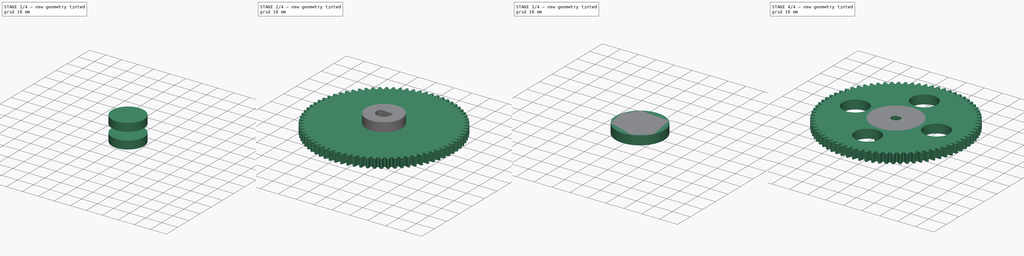
[diagram: build sequence overview — one tinted view per stage of 4, left to right]
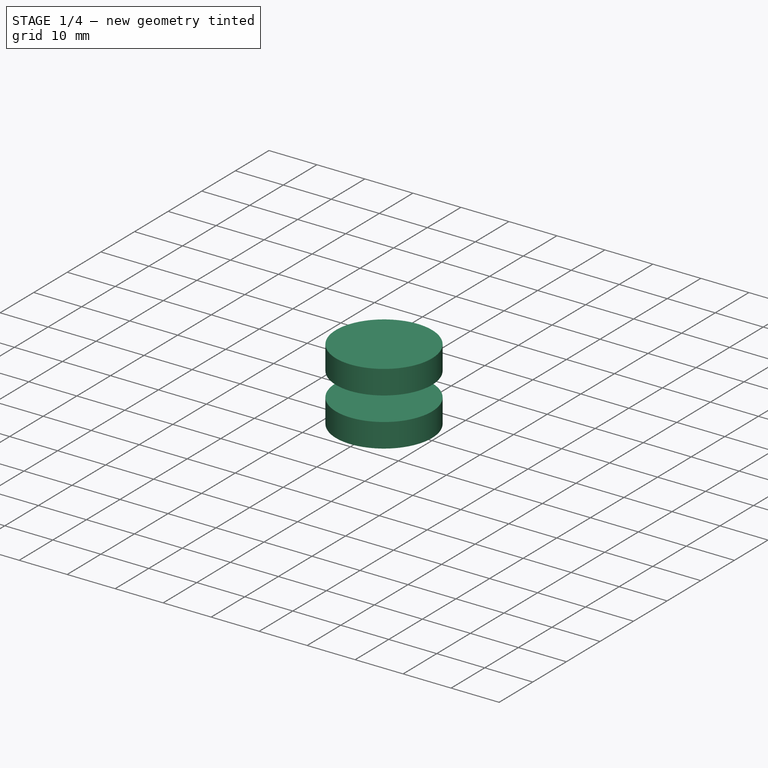
[diagram: stage 1 of 4 — iso view after this stage's code; geometry added in this stage tinted green]
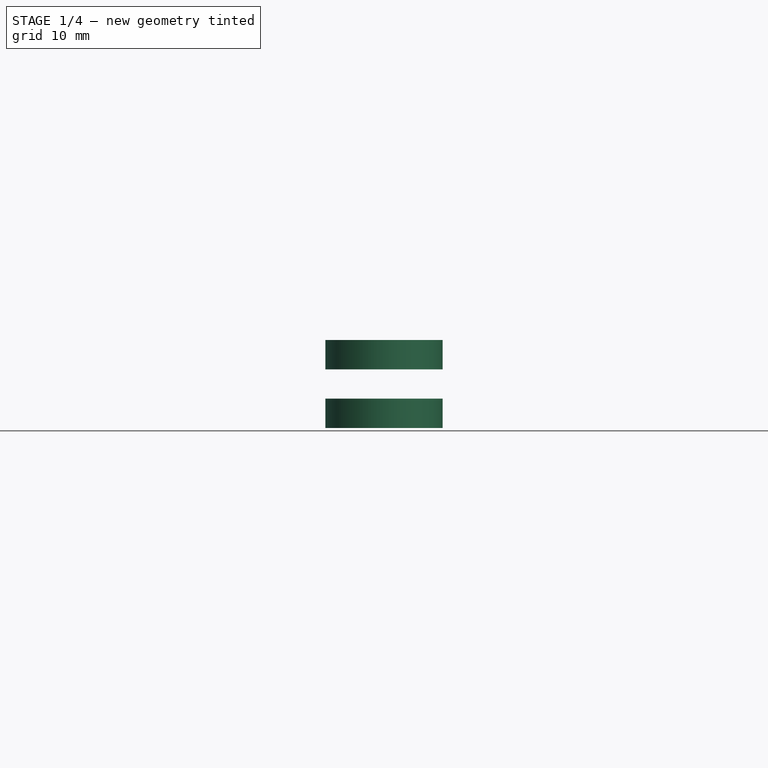
[diagram: stage 1 of 4 — front view after this stage's code; geometry added in this stage tinted green]
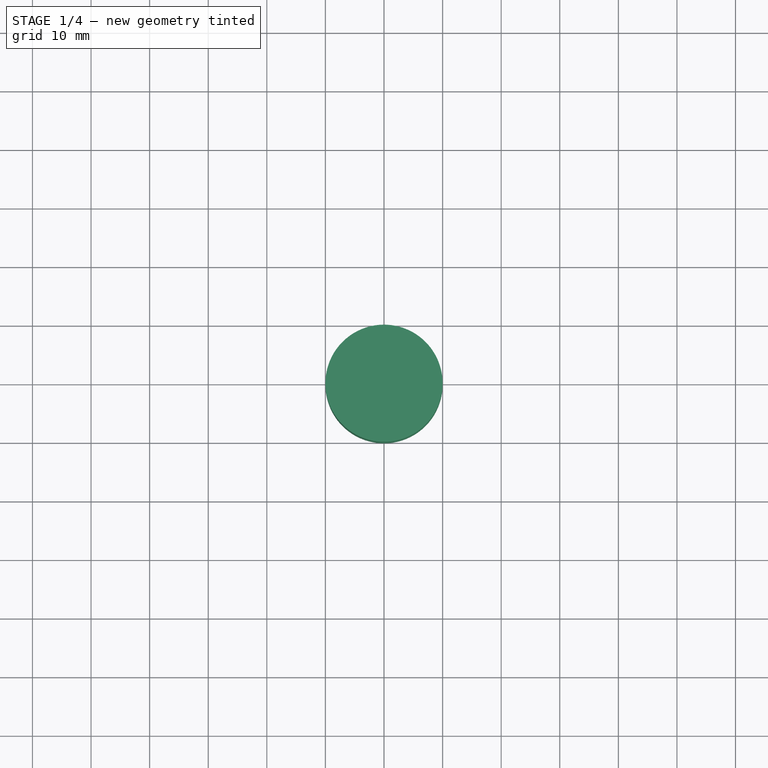
[diagram: stage 1 of 4 — top view after this stage's code; geometry added in this stage tinted green]
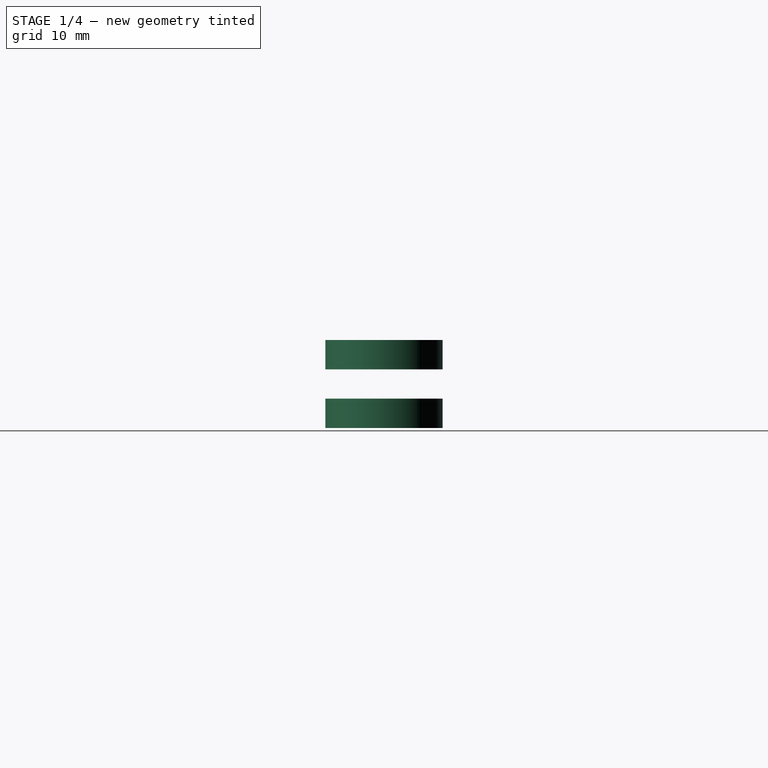
[diagram: stage 1 of 4 — right view after this stage's code; geometry added in this stage tinted green]
FCSTD DOCUMENT  (FreeCAD 0.19R24291 (Git))
Label: Zrcadlovka_Ozubena_kola_2
License: All rights reserved
LicenseURL: http://en.wikipedia.org/wiki/All_rights_reserved
objects: Sketcher::SketchObject×6, Part::Extrusion×5, Part::Cut×4, Part::FeaturePython×2, App::Part×2, Part::Fuse×2, PartDesign::ShapeBinder×1, PartDesign::Pad×1, PartDesign::Body×1
note: 23 computed .brp shape members not serialized (recipe doc carries the construction recipe); baked Part::Feature solids carry a one-line shape summary decoded from their .brp

FEATURE [Part::FeaturePython] involutegear001  # WARN: FeaturePython — macro-defined, semantics opaque (R4)
  AttacherType = Attacher::AttachEngine3D
  backlash = 0
  beta = 0
  clearance = 0.25
  da = 78
  df = 73.5
  double_helix = false
  dw = 76
  head = 0
  height = 5
  module = 1
  numpoints = 6
  pressure_angle = 20
  properties_from_tool = false
  reversed_backlash = false
  shift = 0
  simple = false
  teeth = 76
  transverse_pitch = 3.14159
  undercut = false
  version = 0.0.3
FEATURE [Sketcher::SketchObject] Sketch001
  FullyConstrained = true
  MapMode = 5
  Placement = pos=(0,0,5) rot=(0,0,1;0rad)
  Support = -> [involutegear001]
  sketch-geometry (1):
    g0: Circle CenterX=0 CenterY=0 CenterZ=0 NormalX=0 NormalY=0 NormalZ=1 AngleXU=0 Radius=10
  constraints (2):
    c: Coincident(g0,g-1)
    c: Radius(g0) = 10
FEATURE [Part::Extrusion] Extrude
  Base = -> Sketch001
  Dir = (0,0,1)
  DirMode = 2
  FaceMakerClass = Part::FaceMakerBullseye
  LengthFwd = 5
  LengthRev = 0
  Solid = true
  Symmetric = false
FEATURE [Part::Extrusion] Extrude001
  Base = -> Sketch002
  Dir = (0,0,-1)
  DirMode = 2
  FaceMakerClass = Part::FaceMakerBullseye
  LengthFwd = 5
  LengthRev = 0
  Solid = true
  Symmetric = false
FEATURE [Part::Fuse] Fusion
  Base = -> Extrude
  Tool = -> Extrude001
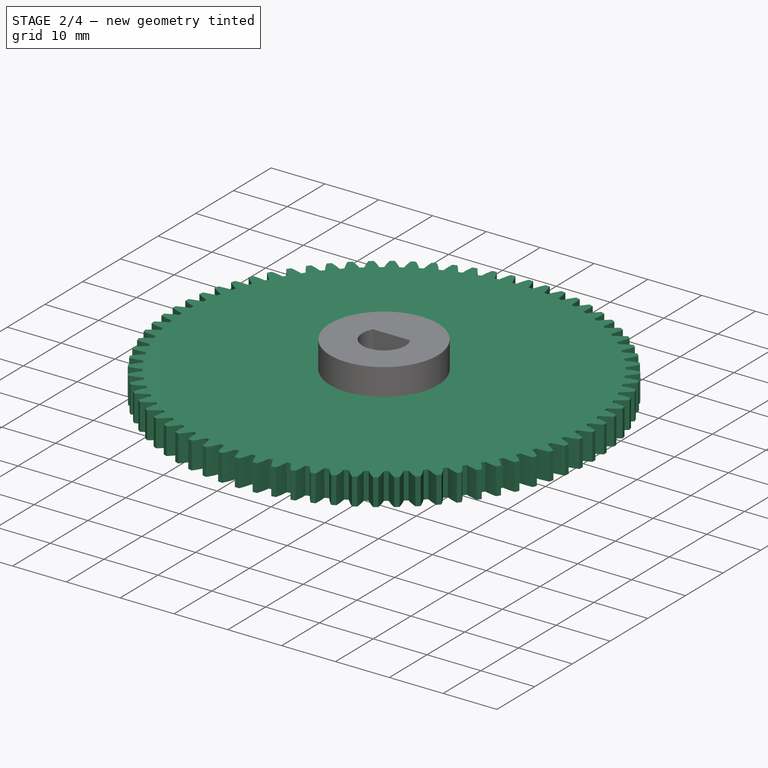
[diagram: stage 2 of 4 — iso view after this stage's code; geometry added in this stage tinted green]
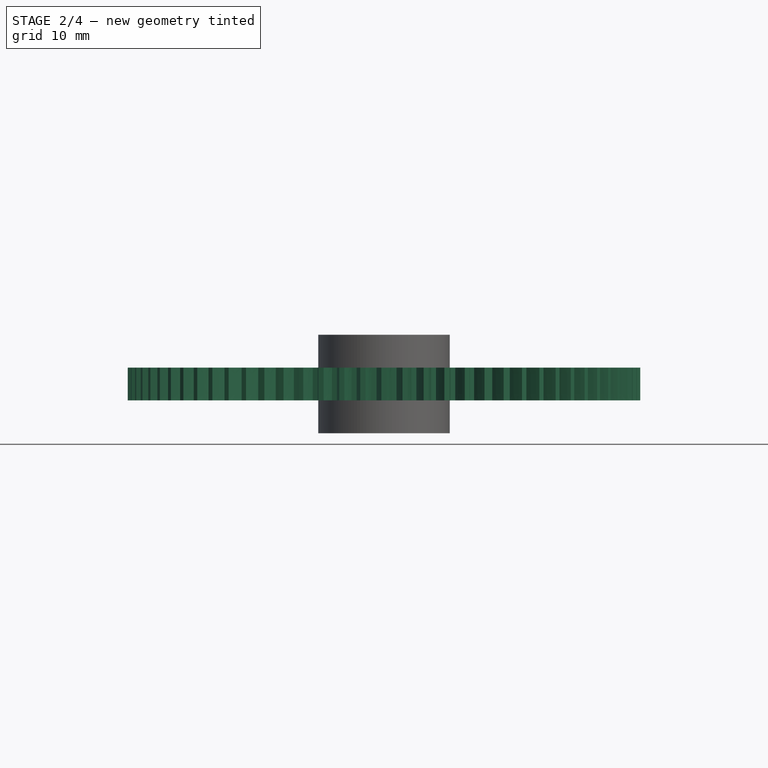
[diagram: stage 2 of 4 — front view after this stage's code; geometry added in this stage tinted green]
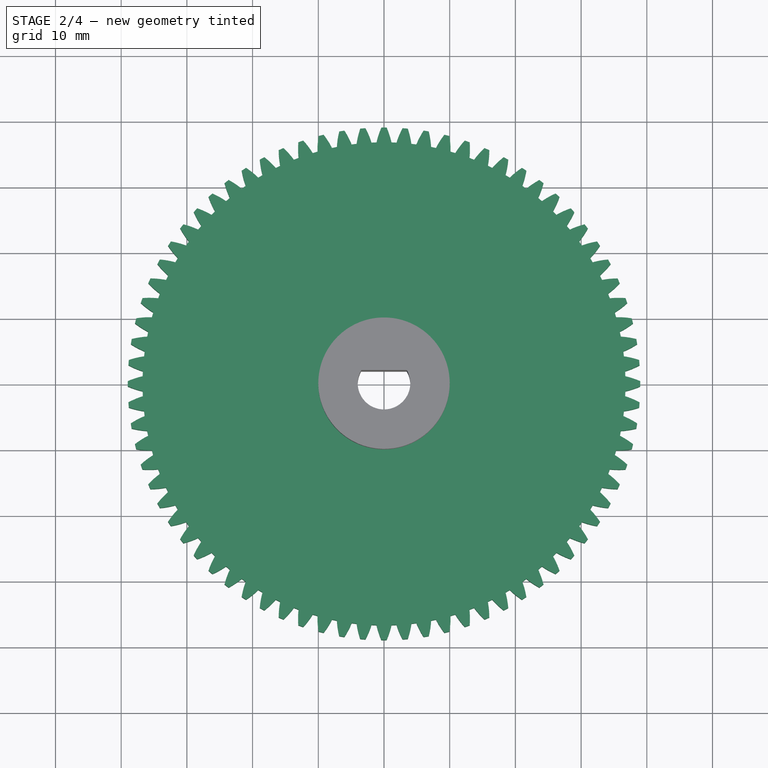
[diagram: stage 2 of 4 — top view after this stage's code; geometry added in this stage tinted green]
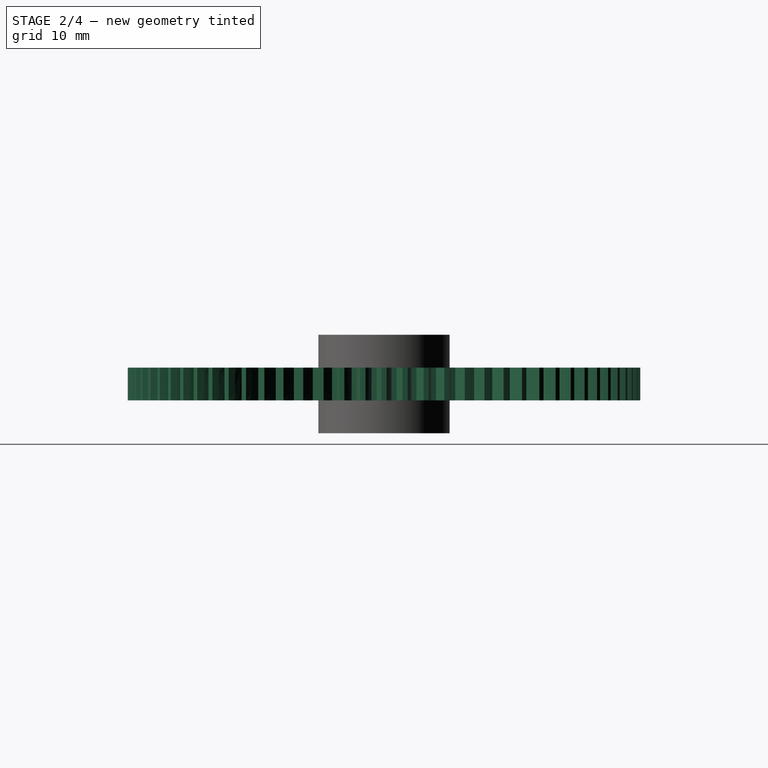
[diagram: stage 2 of 4 — right view after this stage's code; geometry added in this stage tinted green]
FEATURE [Sketcher::SketchObject] Sketch002
  FullyConstrained = true
  MapMode = 5
  Placement = pos=(0,0,0) rot=(1,0,0;3.14159rad)
  Support = -> [involutegear001]
  sketch-geometry (1):
    g0: Circle CenterX=0 CenterY=0 CenterZ=0 NormalX=0 NormalY=0 NormalZ=1 AngleXU=0 Radius=10
  constraints (2):
    c: Coincident(g0,g-1)
    c: Radius(g0) = 10
FEATURE [Sketcher::SketchObject] Sketch003
  FullyConstrained = true
  MapMode = 5
  Placement = pos=(0,0,10) rot=(0,0,1;0rad)
  Support = -> [Extrude]
  sketch-geometry (2):
    g0: ArcOfCircle CenterX=0 CenterY=0 CenterZ=0 NormalX=0 NormalY=0 NormalZ=1 AngleXU=0 Radius=4 StartAngle=2.61799 EndAngle=6.80678
    g1: LineSegment StartX=-3.4641 StartY=2 StartZ=0 EndX=3.4641 EndY=2 EndZ=0
  constraints (6):
    c: Coincident(g0,g-1)
    c: Radius(g0) = 4
    c: Horizontal(g1)
    c: DistanceY(g0,g1) = 2
    c: Coincident(g0,g1)
    c: Coincident(g0,g1)
FEATURE [Part::Extrusion] Extrude002
  Base = -> Sketch003
  Dir = (0,0,1)
  DirMode = 2
  FaceMakerClass = Part::FaceMakerBullseye
  LengthFwd = 20
  LengthRev = 0
  Reversed = true
  Solid = true
  Symmetric = false
FEATURE [Part::Fuse] Fusion001
  Base = -> involutegear001
  Tool = -> Fusion
FEATURE [Part::Cut] Cut001
  Base = -> Fusion001
  Tool = -> Extrude002
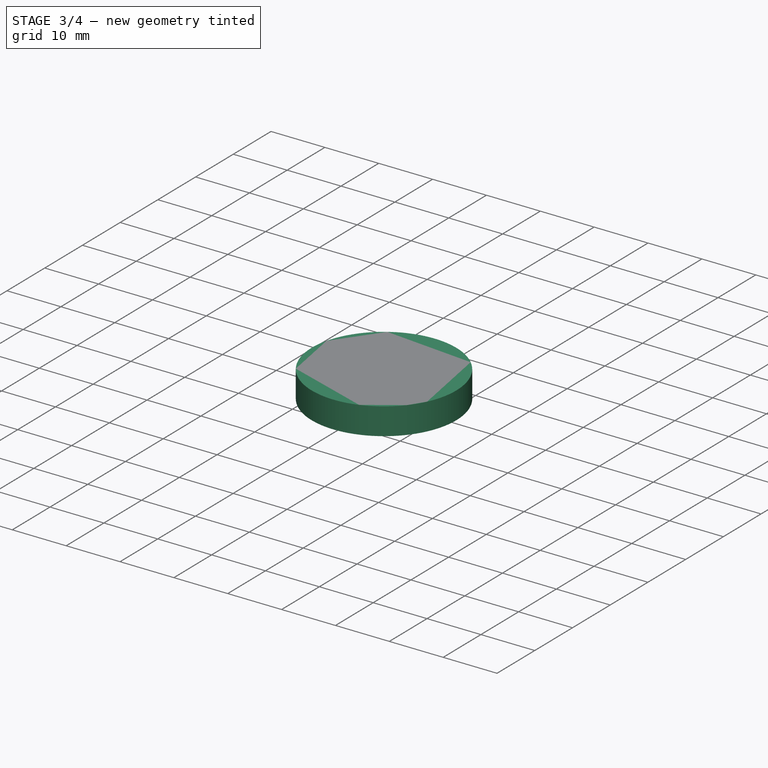
[diagram: stage 3 of 4 — iso view after this stage's code; geometry added in this stage tinted green]
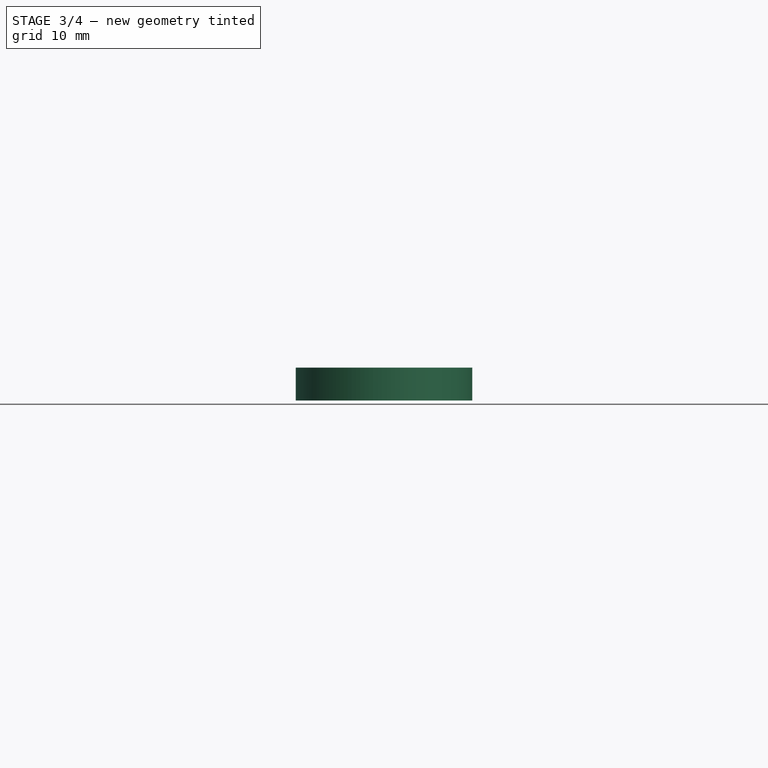
[diagram: stage 3 of 4 — front view after this stage's code; geometry added in this stage tinted green]
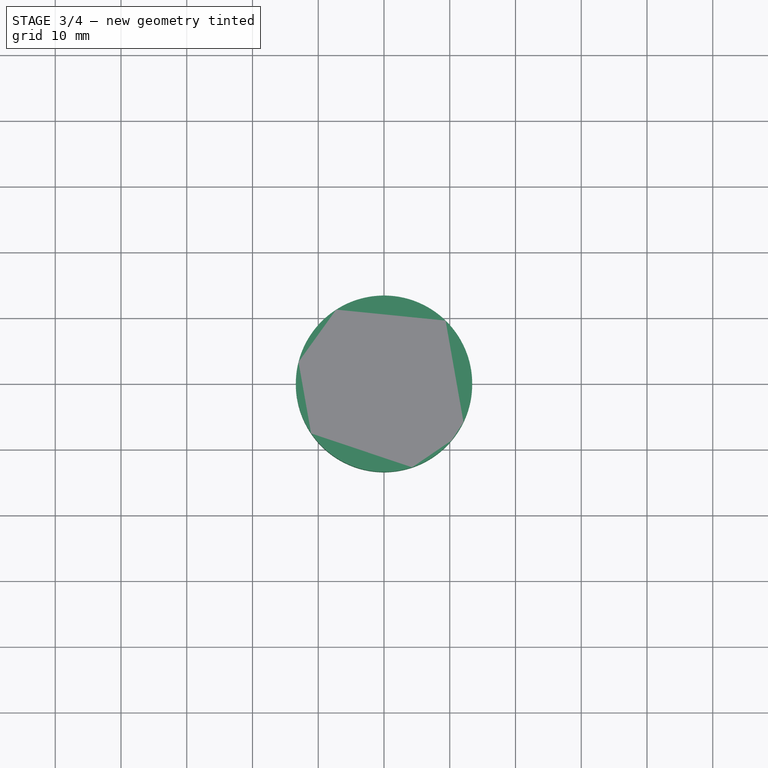
[diagram: stage 3 of 4 — top view after this stage's code; geometry added in this stage tinted green]
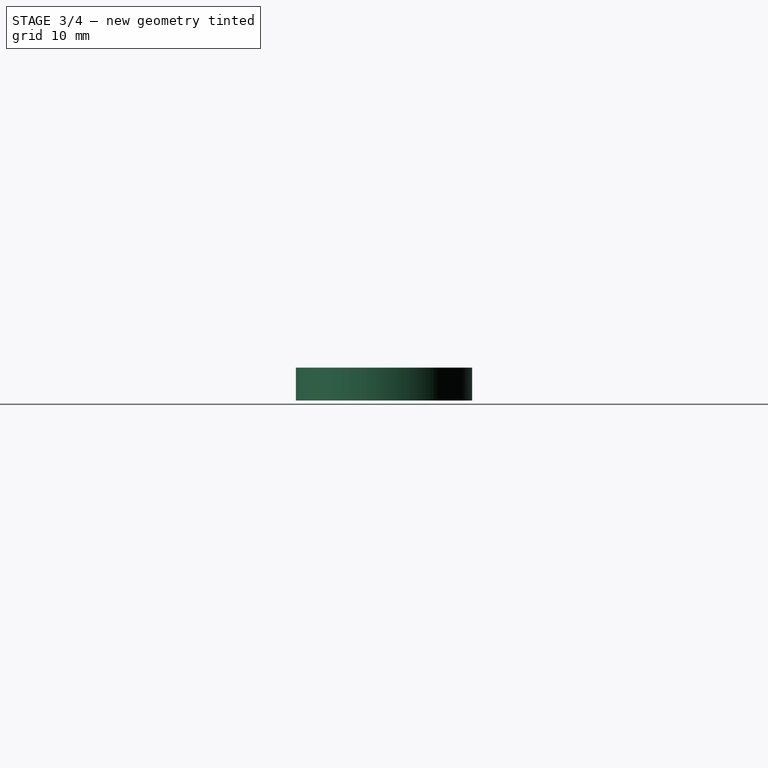
[diagram: stage 3 of 4 — right view after this stage's code; geometry added in this stage tinted green]
FEATURE [Sketcher::SketchObject] Sketch004
  FullyConstrained = true
  MapMode = 5
  Placement = pos=(0,0,0) rot=(1,0,0;3.14159rad)
  Support = -> [Cut001]
  sketch-geometry (4):
    g0: Circle CenterX=0 CenterY=22.5 CenterZ=0 NormalX=0 NormalY=0 NormalZ=1 AngleXU=0 Radius=7
    g1: Circle CenterX=22.5 CenterY=0 CenterZ=0 NormalX=0 NormalY=0 NormalZ=1 AngleXU=0 Radius=7
    g2: Circle CenterX=0 CenterY=-22.5 CenterZ=0 NormalX=0 NormalY=0 NormalZ=1 AngleXU=0 Radius=7
    g3: Circle CenterX=-22.5 CenterY=0 CenterZ=0 NormalX=0 NormalY=0 NormalZ=1 AngleXU=0 Radius=7
  constraints (12):
    c: PointOnObject(g0,g-2)
    c: DistanceY(g-1,g0) = 22.5
    c: Radius(g0) = 7
    c: PointOnObject(g1,g-1)
    c: DistanceX(g-1,g1) = 22.5
    c: Radius(g1) = 7
    c: PointOnObject(g2,g-2)
    c: PointOnObject(g3,g-1)
    c: DistanceX(g3,g-1) = 22.5
    c: Radius(g3) = 7
    c: Radius(g2) = 7
    c: DistanceY(g2,g-1) = 22.5
FEATURE [Part::Extrusion] Extrude003
  Base = -> Sketch004
  Dir = (0,0,-1)
  DirMode = 2
  FaceMakerClass = Part::FaceMakerBullseye
  LengthFwd = 10
  LengthRev = 0
  Reversed = true
  Solid = true
  Symmetric = false
FEATURE [Part::Cut] Cut002  label="VelkeKoloCelek"
  Base = -> Cut001
  Tool = -> Extrude003
FEATURE [Sketcher::SketchObject] Sketch005
  FullyConstrained = false
  MapMode = 5
  Placement = pos=(0,0,10) rot=(0,0,1;0rad)
  Support = -> [Cut002]
  sketch-geometry (1):
    g0: Circle CenterX=0 CenterY=0 CenterZ=0 NormalX=0 NormalY=0 NormalZ=1 AngleXU=0 Radius=13.4147
  constraints (1):
    c: Coincident(g0,g-1)
FEATURE [Part::Extrusion] Extrude004
  Base = -> Sketch005
  Dir = (0,0,1)
  DirMode = 2
  FaceMakerClass = Part::FaceMakerBullseye
  LengthFwd = 5
  LengthRev = 0
  Reversed = true
  Solid = true
  Symmetric = false
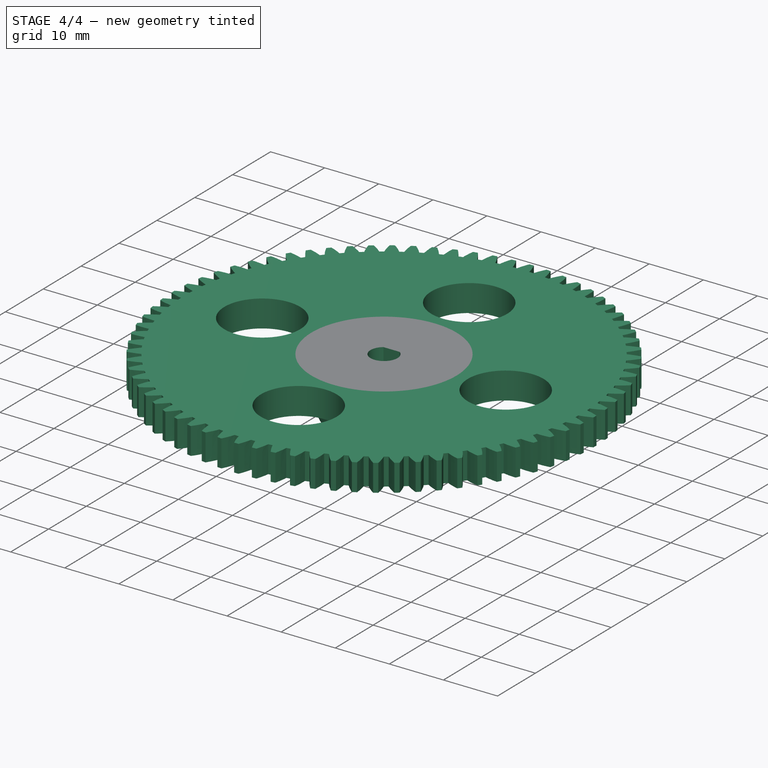
[diagram: stage 4 of 4 — iso view after this stage's code; geometry added in this stage tinted green]
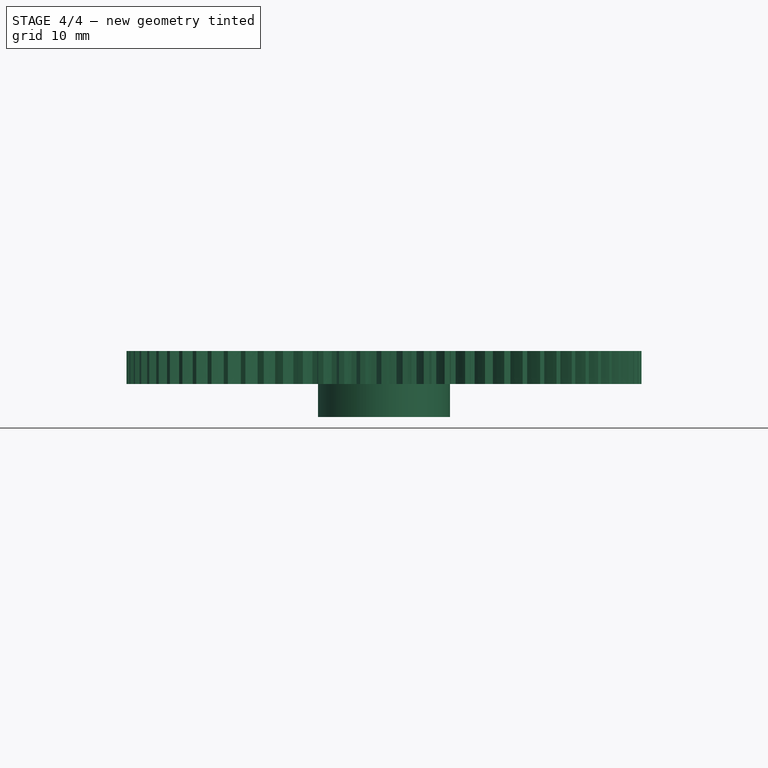
[diagram: stage 4 of 4 — front view after this stage's code; geometry added in this stage tinted green]
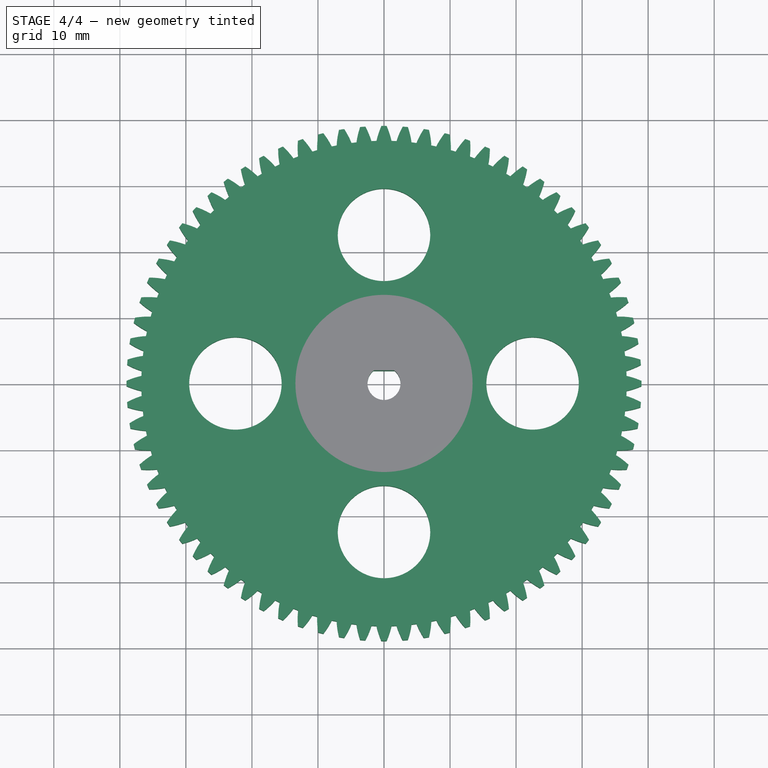
[diagram: stage 4 of 4 — top view after this stage's code; geometry added in this stage tinted green]
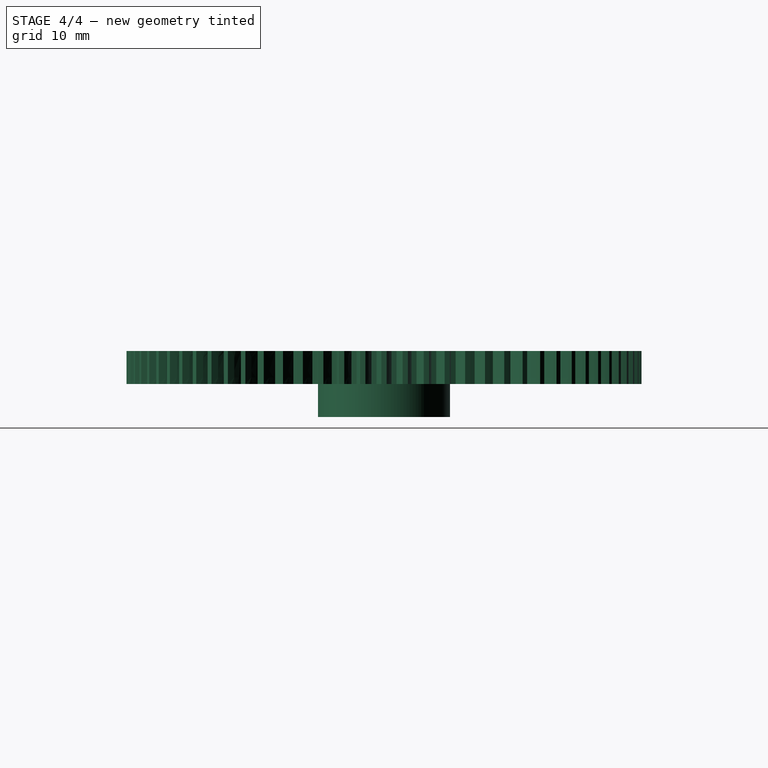
[diagram: stage 4 of 4 — right view after this stage's code; geometry added in this stage tinted green]
FEATURE [Part::FeaturePython] involutegear  # WARN: FeaturePython — macro-defined, semantics opaque (R4)
  AttacherType = Attacher::AttachEngine3D
  backlash = 0
  beta = 0
  clearance = 0.25
  da = 18
  df = 13.5
  double_helix = false
  dw = 16
  head = 0
  height = 5
  module = 1
  numpoints = 6
  pressure_angle = 20
  properties_from_tool = false
  reversed_backlash = false
  shift = 0
  simple = false
  teeth = 16
  transverse_pitch = 3.14159
  undercut = false
  version = 0.0.3
FEATURE [App::Part] Part
  Group = -> [involutegear001]
  Origin = -> Origin
FEATURE [App::Part] Part001
  Group = -> [involutegear]
  Origin = -> Origin001
FEATURE [PartDesign::ShapeBinder] Copyinvolutegear
  Placement = pos=(0,0,5) rot=(0,0,1;0rad)
  TraceSupport = false
FEATURE [Sketcher::SketchObject] Sketch
  FullyConstrained = true
  MapMode = 5
  Placement = pos=(0,0,5) rot=(0,0,1;0rad)
  Support = -> [Copyinvolutegear]
  sketch-geometry (2):
    g0: ArcOfCircle CenterX=0 CenterY=0 CenterZ=0 NormalX=0 NormalY=0 NormalZ=1 AngleXU=0 Radius=2.5 StartAngle=2.2143 EndAngle=7.21048
    g1: LineSegment StartX=-1.5 StartY=2 StartZ=0 EndX=1.5 EndY=2 EndZ=0
  constraints (6):
    c: Coincident(g0,g-1)
    c: Radius(g0) = 2.5
    c: Horizontal(g1)
    c: DistanceY(g0,g1) = 2
    c: Coincident(g0,g1)
    c: Coincident(g0,g1)
FEATURE [PartDesign::Pad] Pad
  Direction = (1,1,1)
  Length = 10
  Length2 = 100
  Placement = pos=(0,0,5) rot=(0,0,1;0rad)
  Profile = -> Sketch
  Reversed = true
  Type = 0
FEATURE [PartDesign::Body] Body
  Group = -> [Copyinvolutegear,Sketch,Pad]
  Origin = -> Origin002
  Tip = -> Pad
FEATURE [Part::Cut] Cut  label="MaleKolo"
  Base = -> involutegear
  Tool = -> Pad
FEATURE [Part::Cut] Cut003
  Base = -> Cut002
  Tool = -> Extrude004
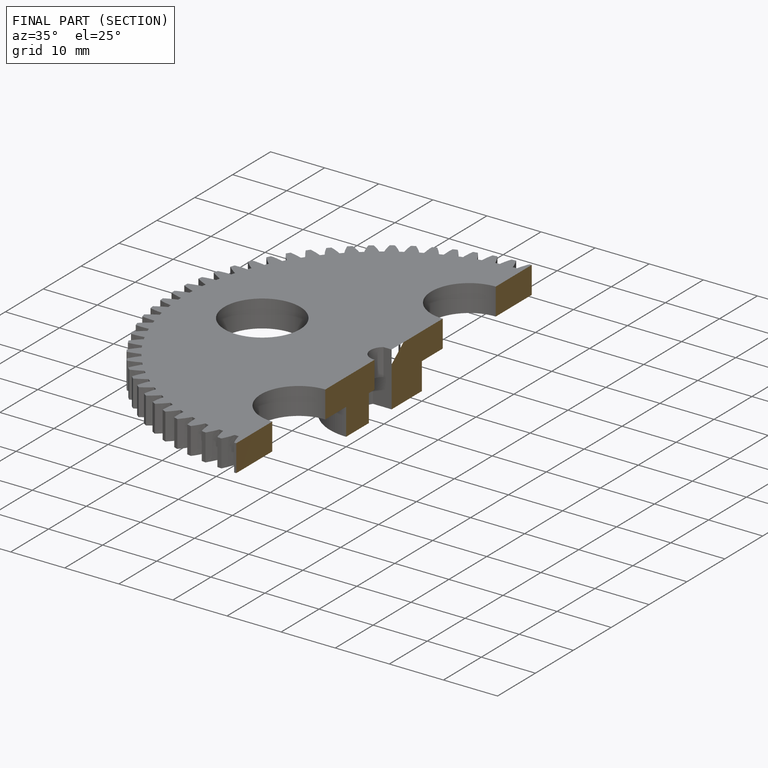
[diagram: finished part — half-section view (interior)]
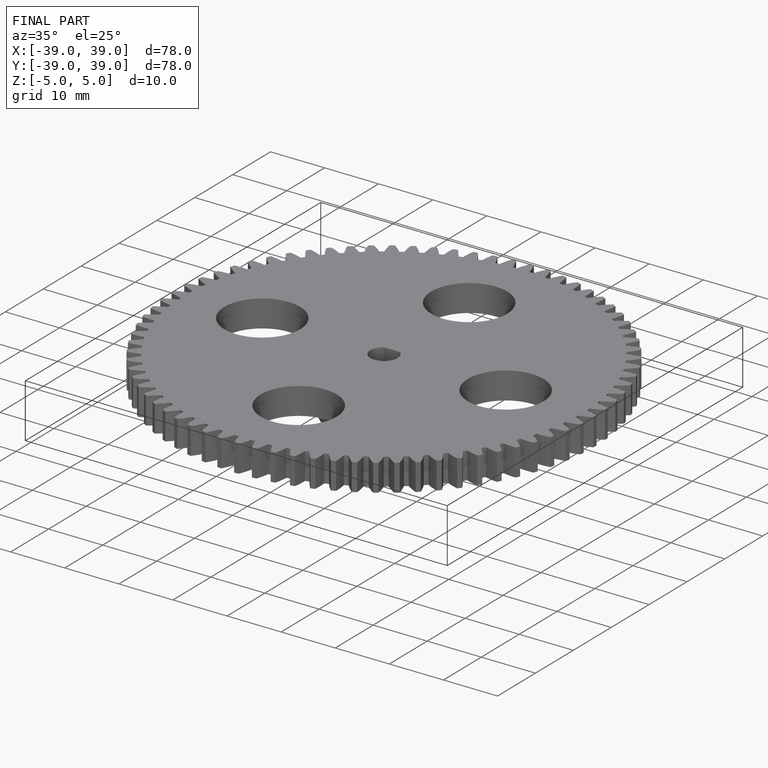
[diagram: finished part — iso view with bounding-box wireframe]
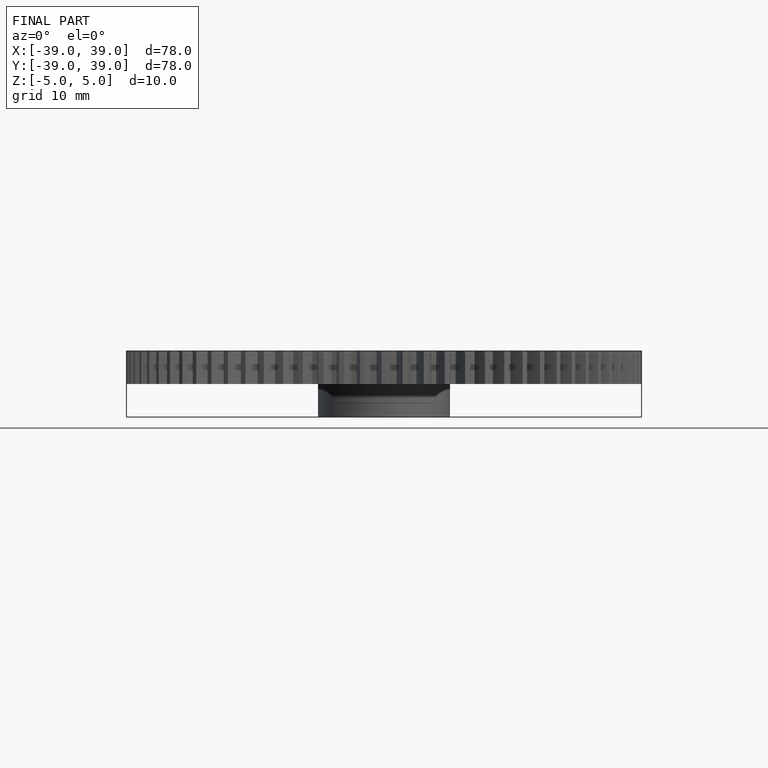
[diagram: finished part — front view with bounding-box wireframe]
